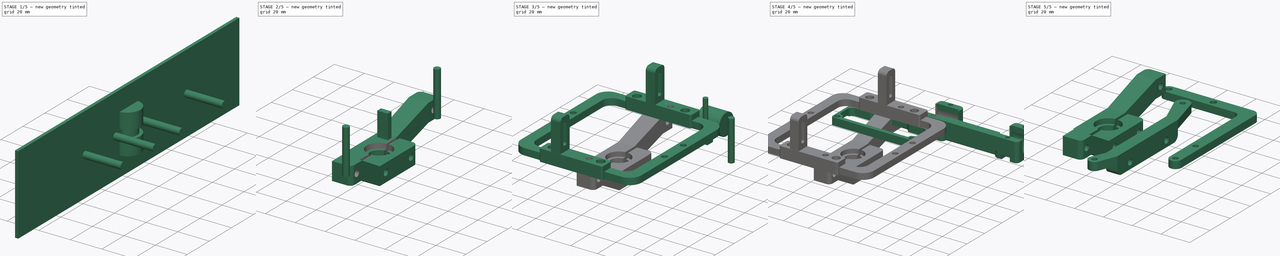
[diagram: build sequence overview — one tinted view per stage of 5, left to right]
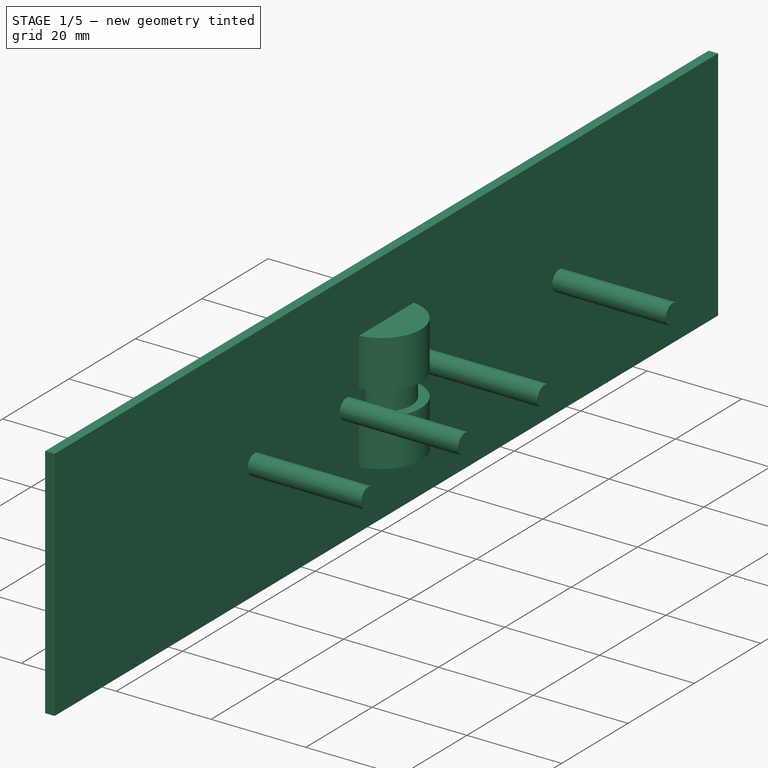
[diagram: stage 1 of 5 — iso view after this stage's code; geometry added in this stage tinted green]
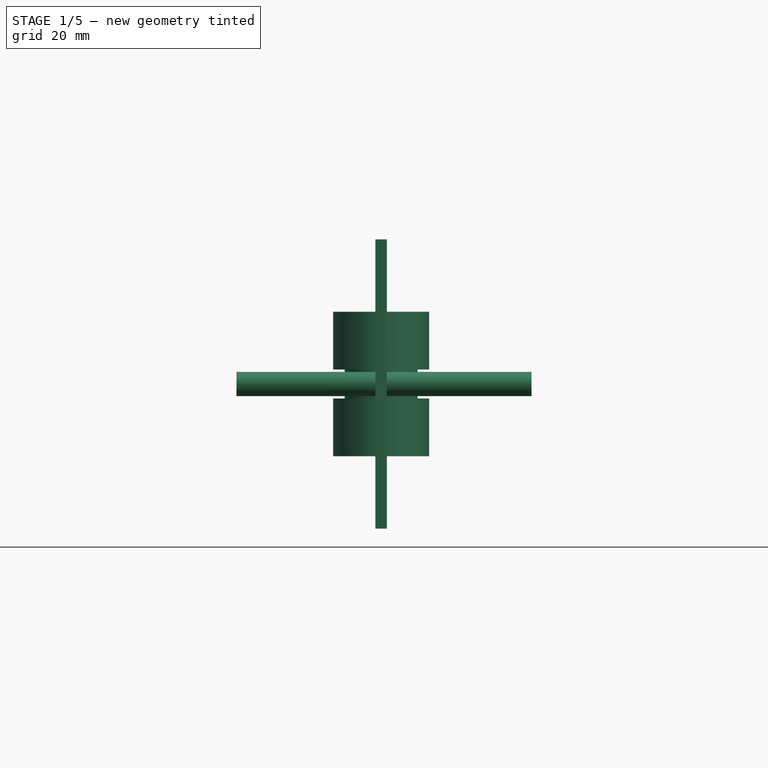
[diagram: stage 1 of 5 — front view after this stage's code; geometry added in this stage tinted green]
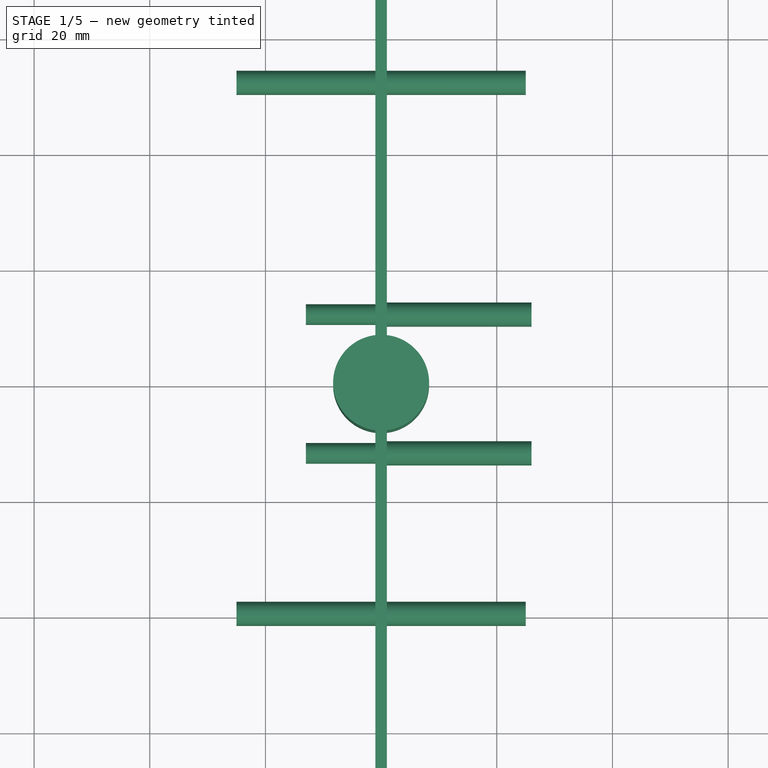
[diagram: stage 1 of 5 — top view after this stage's code; geometry added in this stage tinted green]
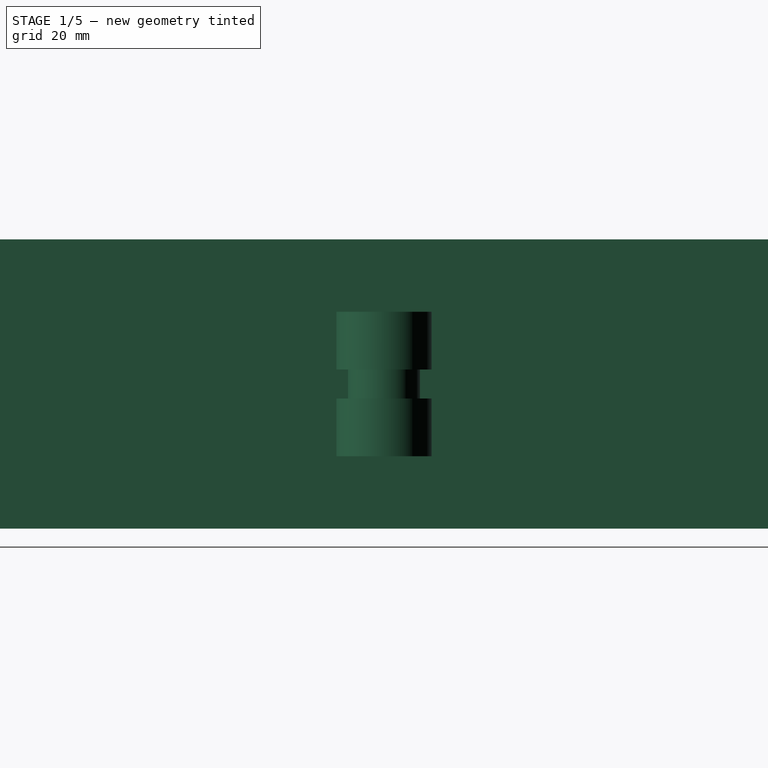
[diagram: stage 1 of 5 — right view after this stage's code; geometry added in this stage tinted green]
FCSTD DOCUMENT  (FreeCAD 0.21R33771 (Git))
Label: heasink_holder
License: All rights reserved
LicenseURL: http://en.wikipedia.org/wiki/All_rights_reserved
objects: Part::Compound×14, Part::Cylinder×11, Part::MultiFuse×11, Part::Box×9, Part::Feature×9, Part::Cut×7, Part::Fillet×6, Sketcher::SketchObject×6, Part::Extrusion×6, Part::Mirroring×5, Part::FeaturePython×5, Part::Loft×2, Part::Plane×1
note: 89 computed .brp shape members not serialized (recipe doc carries the construction recipe); baked Part::Feature solids carry a one-line shape summary decoded from their .brp

FEATURE [Part::Cylinder] Cylinder001  label="outer hole"
  Angle = 360
  AttacherType = Attacher::AttachEngine3D
  FirstAngle = 0
  Height = 10
  Placement = pos=(0,0,2.5) rot=(0,0,1;0rad)
  Radius = 8.3
  SecondAngle = 0
FEATURE [Part::Box] Box  label="outer cube"
  AttacherType = Attacher::AttachEngine3D
  Height = 12
  Length = 26
  Placement = pos=(-13,-18,-6) rot=(0,0,1;0rad)
  Width = 36
  expr: .Placement.Base.x = -Length / 2
  expr: .Placement.Base.y = -Width / 2
  expr: .Placement.Base.z = -Height / 2
FEATURE [Part::Mirroring] Part__Mirroring  label="outer hole (Mirror #1)"
  Base = (0,0,0)
  Normal = (0,0,1)
  Source = -> Cylinder001
FEATURE [Part::Cylinder] Cylinder  label="inner hole"
  Angle = 360
  AttacherType = Attacher::AttachEngine3D
  FirstAngle = 0
  Height = 12
  Placement = pos=(0,0,-6) rot=(0,0,1;0rad)
  Radius = 6.3
  SecondAngle = 0
  expr: .Placement.Base.z = -Height / 2
  expr: Height = <<outer cube>>.Height
FEATURE [Part::MultiFuse] Fusion  label="hole fusion"
  Shapes = -> [Part__Mirroring,Cylinder001,Cylinder]
  expr: .Placement.Base.z = <<outer fillet>>.Placement.Base.z
FEATURE [Part::Fillet] Fillet  label="outer fillet"
  Base = -> Box
  Edges = 2 edges r=3: [Edge1,Edge7]
FEATURE [Part::Box] Box001  label="cutter cube"
  AttacherType = Attacher::AttachEngine3D
  Height = 50
  Length = 2
  Placement = pos=(-1,-100,-25) rot=(0,0,1;0rad)
  Width = 200
  expr: .Placement.Base.x = -Length / 2
  expr: .Placement.Base.y = -Width / 2
  expr: .Placement.Base.z = -Height / 2
FEATURE [Part::Cylinder] Cylinder002  label="bolt hole"
  Angle = 360
  AttacherType = Attacher::AttachEngine3D
  FirstAngle = 0
  Height = 26
  Placement = pos=(-13,12,0) rot=(0,1,0;1.5708rad)
  Radius = 1.8
  SecondAngle = 0
  expr: .Placement.Base.x = -Height / 2
  expr: .Placement.Base.y = <<outer cube>>.Width / 2 - 6 mm
  expr: Height = <<outer cube>>.Length
FEATURE [Part::Cylinder] Cylinder003  label="inserter hole"
  Angle = 360
  AttacherType = Attacher::AttachEngine3D
  FirstAngle = 0
  Height = 26
  Placement = pos=(0,12,0) rot=(0,1,0;1.5708rad)
  Radius = 2.1
  SecondAngle = 0
  expr: .Placement.Base.y = <<outer cube>>.Width / 2 - 6 mm
  expr: Height = <<outer cube>>.Length
FEATURE [Part::MultiFuse] Fusion001  label="bolt-inserter hole"
  Shapes = -> [Cylinder002,Cylinder003]
FEATURE [Part::Mirroring] Part__Mirroring001  label="bolt-inserter hole (Mirror #2)"
  Base = (0,0,0)
  Normal = (0,1,0)
  Source = -> Fusion001
FEATURE [Part::Cylinder] Cylinder008  label="outer positive inserter hole"
  Angle = 360
  AttacherType = Attacher::AttachEngine3D
  FirstAngle = 0
  Height = 50
  Placement = pos=(-25,52.08,0) rot=(0,1,0;1.5708rad)
  Radius = 2.1
  SecondAngle = 0
  expr: .Placement.Base.x = -Height / 2
FEATURE [Part::Feature] E3d_v6_Heatsink004
  Placement = pos=(-8.4,-6.1,29.3) rot=(0,0,1;0rad)
  shape: bbox 22.3 x 22.3 x 42.7 mm, 17496 faces, 0 solids (baked)
FEATURE [Part::Feature] Compound021  label="old kit compound"
  shape: bbox 97.96 x 115.6 x 138.6 mm, 5476 faces, 7 solids (baked)
FEATURE [Part::Cylinder] Cylinder009  label="outer negative inserter hole"
  Angle = 360
  AttacherType = Attacher::AttachEngine3D
  FirstAngle = 0
  Height = 50
  Placement = pos=(-25,-39.75,0) rot=(0,1,0;1.5708rad)
  Radius = 2.1
  SecondAngle = 0
  expr: .Placement.Base.x = -Height / 2
FEATURE [Part::Feature] Face004
  shape: bbox 13 x 2e-07 x 12 mm, 1 faces, 0 solids (baked)
FEATURE [Part::Feature] Face005
  shape: bbox 13 x 2e-07 x 12 mm, 1 faces, 0 solids (baked)
FEATURE [Part::MultiFuse] Fusion011  label="hole hole fusion"
  Shapes = -> [Fusion001,Box001,Part__Mirroring001,Fusion]
FEATURE [Part::MultiFuse] Fusion013  label="hole fusion002"
  Shapes = -> [Cylinder008,Cylinder009]
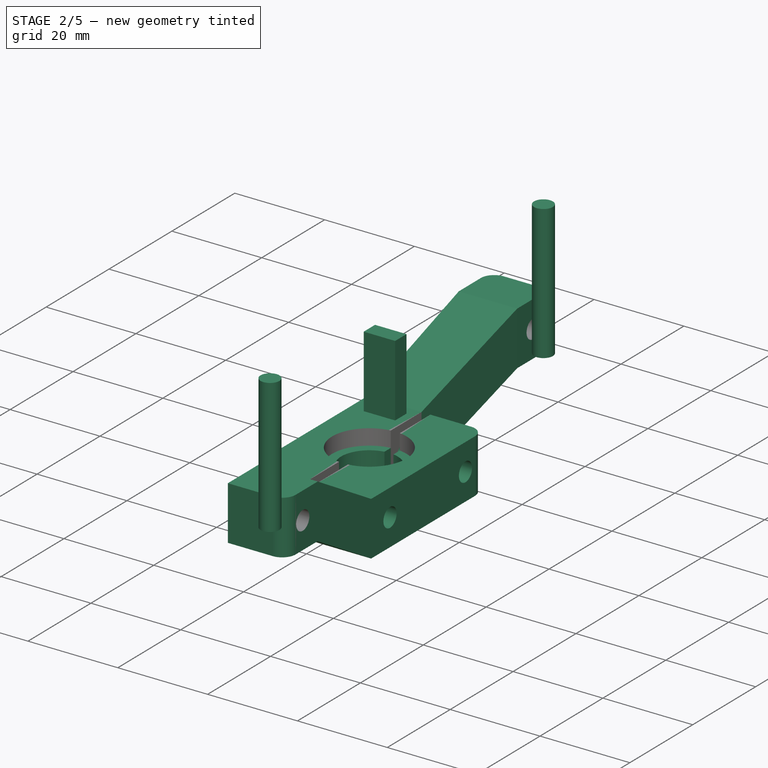
[diagram: stage 2 of 5 — iso view after this stage's code; geometry added in this stage tinted green]
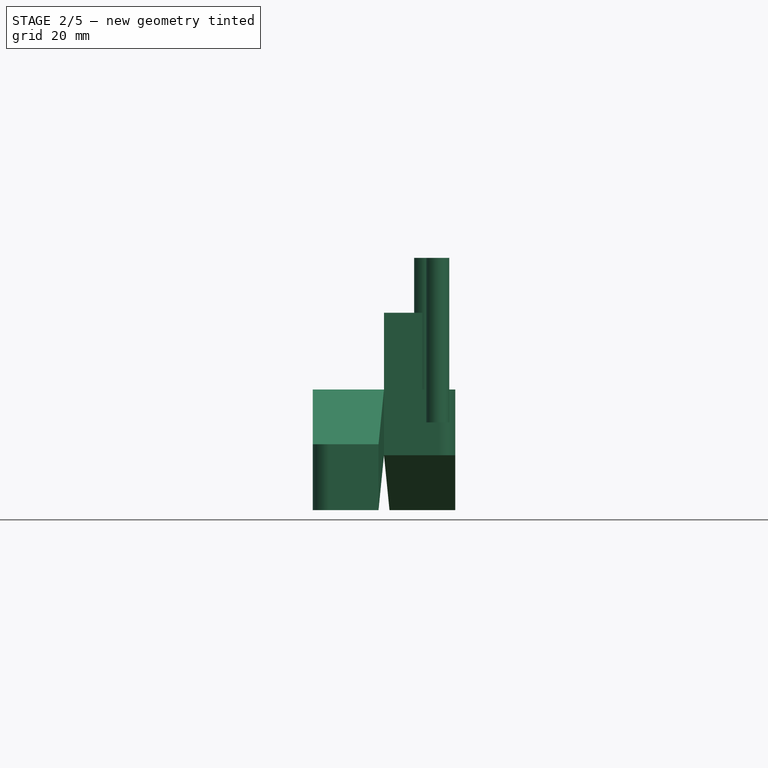
[diagram: stage 2 of 5 — front view after this stage's code; geometry added in this stage tinted green]
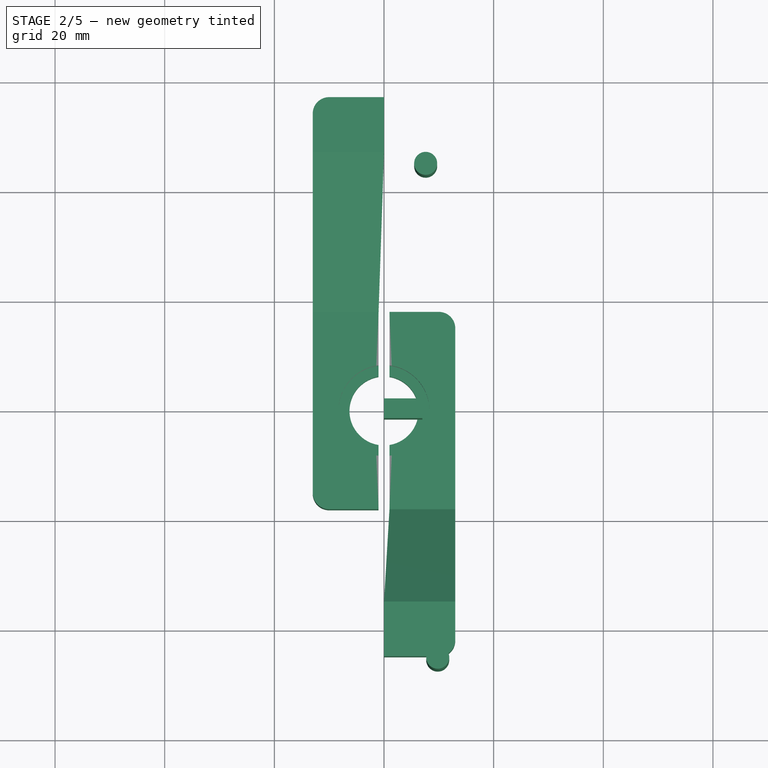
[diagram: stage 2 of 5 — top view after this stage's code; geometry added in this stage tinted green]
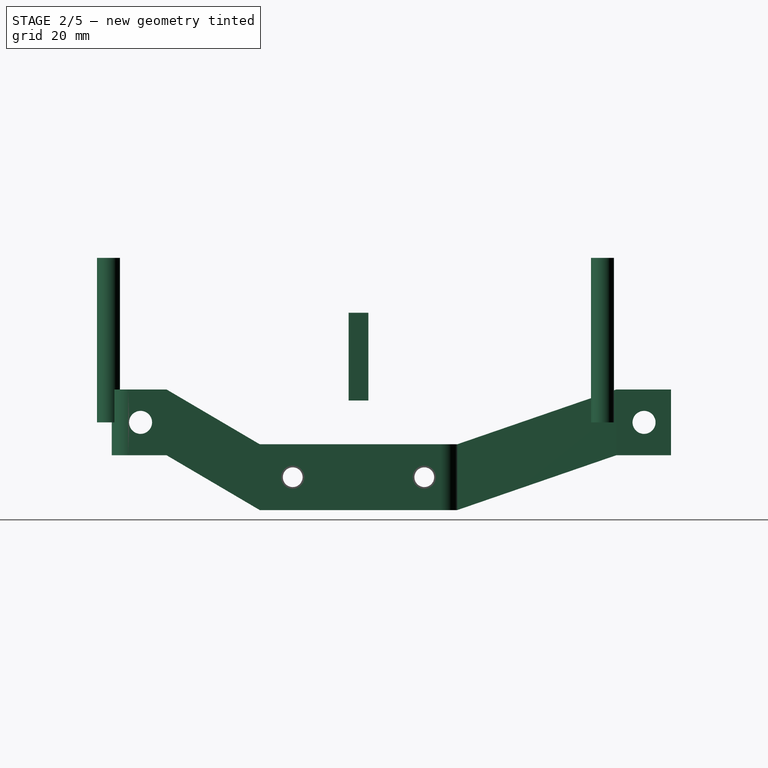
[diagram: stage 2 of 5 — right view after this stage's code; geometry added in this stage tinted green]
FEATURE [Part::Box] Box007  label="outer positive cube extender"
  AttacherType = Attacher::AttachEngine3D
  Height = 12
  Length = 13
  Placement = pos=(-13,47,-6) rot=(0,0,1;0rad)
  Width = 10
  expr: .Placement.Base.x = -Length
  expr: .Placement.Base.z = -Height / 2
  expr: Length = <<outer cube>>.Length / 2
FEATURE [Part::Fillet] Fillet003  label="outer positive cube extender fillet"
  Base = -> Box007
  Edges = 1 edges r=3: [Edge3]
FEATURE [Part::Box] Box008  label="outer negative cube extender"
  AttacherType = Attacher::AttachEngine3D
  Height = 12
  Length = 13
  Placement = pos=(0,-45,-6) rot=(0,0,1;0rad)
  Width = 10
  expr: .Placement.Base.z = -Height / 2
  expr: Length = <<outer cube>>.Length / 2
FEATURE [Part::Fillet] Fillet004  label="outer negative cube extender fillet"
  Base = -> Box008
  Edges = 1 edges r=3: [Edge5]
FEATURE [Part::Box] Box009  label="stand cube"
  AttacherType = Attacher::AttachEngine3D
  Height = 24
  Length = 7
  Placement = pos=(0,-5,0) rot=(0,0,1;0rad)
  Width = 10
  expr: .Placement.Base.y = -Width / 2
FEATURE [Part::Box] Box010  label="stand hole"
  AttacherType = Attacher::AttachEngine3D
  Height = 16
  Length = 7
  Placement = pos=(0,-1.8,4) rot=(0,0,1;0rad)
  Width = 3.6
  expr: .Placement.Base.y = -Width / 2
  expr: .Placement.Base.z = (<<stand cube>>.Height - Height) / 2
  expr: Height = <<stand cube>>.Height - 8 mm
  expr: Length = <<stand cube>>.Length
FEATURE [Part::Cylinder] Cylinder010  label="insert hole"
  Angle = 360
  AttacherType = Attacher::AttachEngine3D
  FirstAngle = 0
  Height = 30
  Placement = pos=(7.6,44.5,0) rot=(0,0,1;0rad)
  Radius = 2.1
  SecondAngle = 0
FEATURE [Part::Cylinder] Cylinder011  label="insert hole003"
  Angle = 360
  AttacherType = Attacher::AttachEngine3D
  FirstAngle = 0
  Height = 30
  Placement = pos=(9.8,-45.6,0) rot=(0,0,1;0rad)
  Radius = 2.1
  SecondAngle = 0
FEATURE [Part::MultiFuse] Fusion010  label="insert hole fusion"
  Shapes = -> [Cylinder011,Cylinder010]
FEATURE [Part::Cut] Cut008  label="outer cut"
  Base = -> Fillet
  Placement = pos=(0,0,-10) rot=(0,0,1;0rad)
  Tool = -> Fusion011
FEATURE [Part::Feature] Face006
  shape: bbox 12 x 3e-07 x 12 mm, 1 faces, 0 solids (baked)
FEATURE [Part::Loft] Loft
  Closed = false
  MaxDegree = 5
  Ruled = false
  Sections = -> [Face005,Face006]
  Solid = true
FEATURE [Part::Feature] Face007
  shape: bbox 12 x 2e-07 x 12 mm, 1 faces, 0 solids (baked)
FEATURE [Part::Loft] Loft001
  Closed = false
  MaxDegree = 5
  Ruled = false
  Sections = -> [Face004,Face007]
  Solid = true
FEATURE [Part::MultiFuse] Fusion012  label="heatsink holder fusion"
  Shapes = -> [Fillet003,Fillet004,Loft,Loft001,Cut008]
FEATURE [Part::Cut] Cut009  label="heatsink holder cut"
  Base = -> Fusion012
  Tool = -> Fusion013
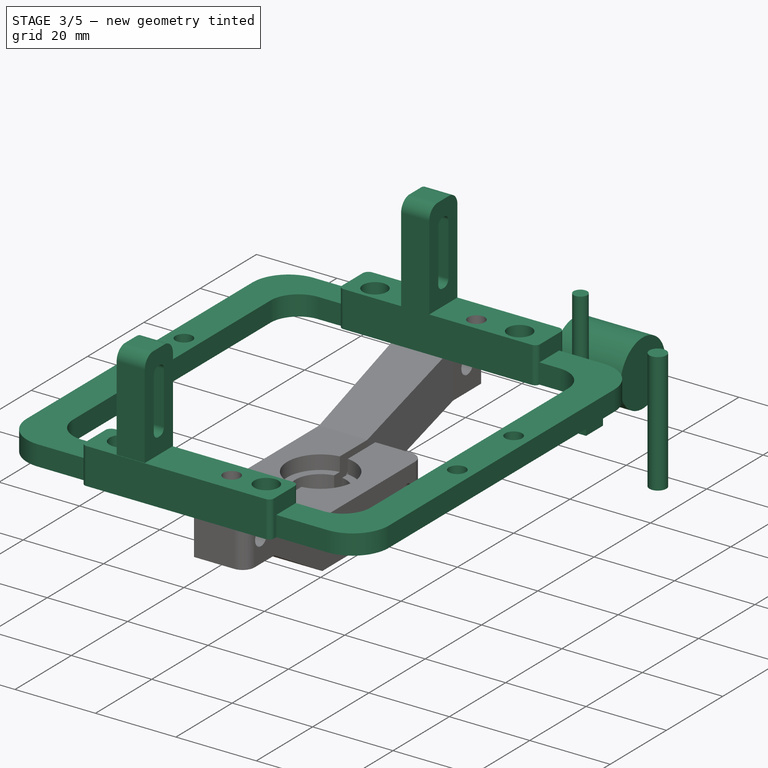
[diagram: stage 3 of 5 — iso view after this stage's code; geometry added in this stage tinted green]
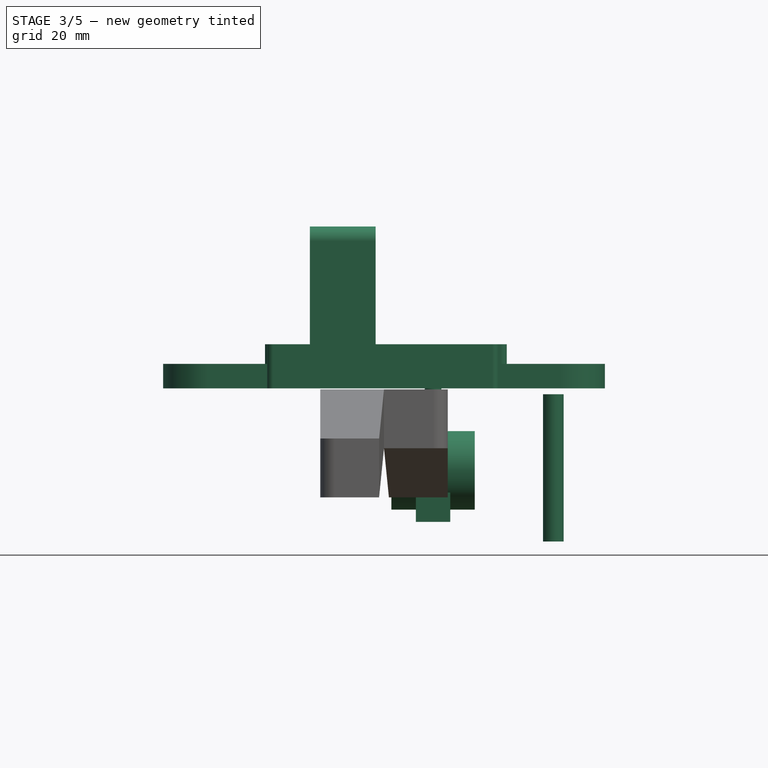
[diagram: stage 3 of 5 — front view after this stage's code; geometry added in this stage tinted green]
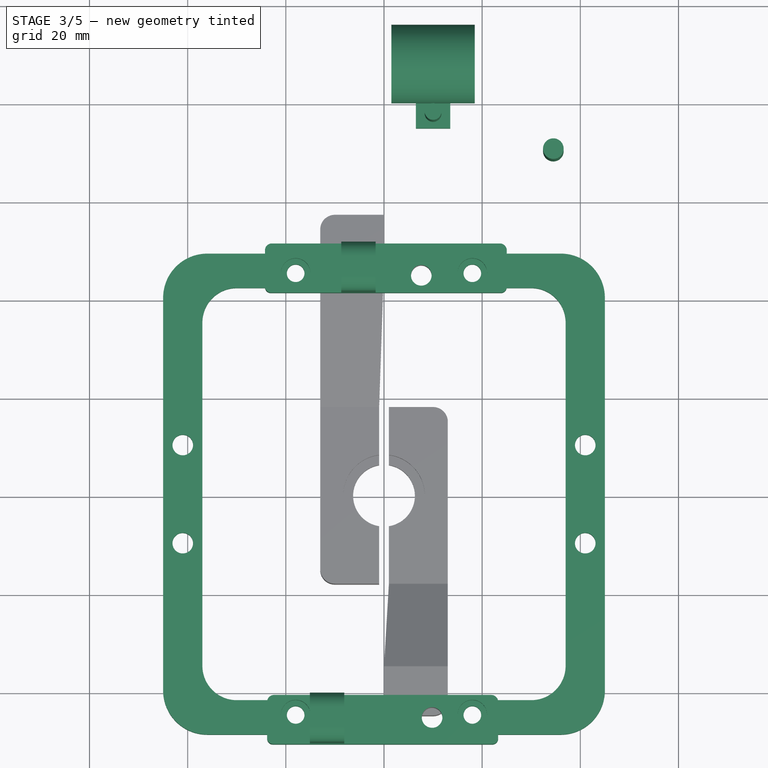
[diagram: stage 3 of 5 — top view after this stage's code; geometry added in this stage tinted green]
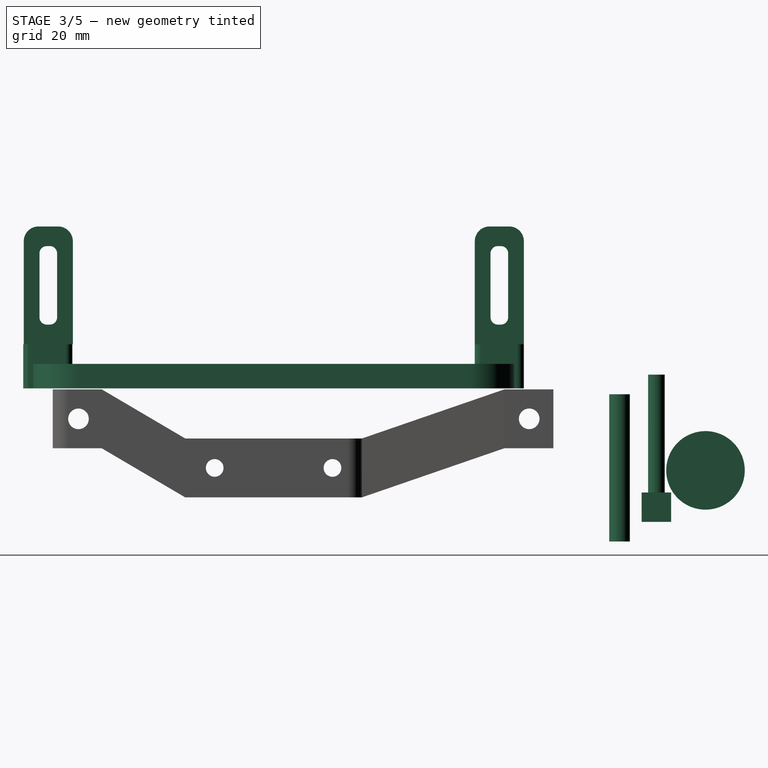
[diagram: stage 3 of 5 — right view after this stage's code; geometry added in this stage tinted green]
FEATURE [Part::Box] Box002  label="Cube"
  AttacherType = Attacher::AttachEngine3D
  Height = 6
  Length = 7
  Placement = pos=(-3.5,-3,0) rot=(0,0,1;0rad)
  Width = 6
  expr: .Placement.Base.x = -Length / 2
  expr: .Placement.Base.y = -Width / 2
FEATURE [Part::Box] Box005  label="cs cube"
  AttacherType = Attacher::AttachEngine3D
  Height = 9
  Length = 8
  Placement = pos=(10.2,-26,-2.4) rot=(0,0,1;0rad)
  Width = 55
FEATURE [Part::Cylinder] Cylinder004  label="bearing hole"
  Angle = 360
  AttacherType = Attacher::AttachEngine3D
  FirstAngle = 0
  Height = 17
  Placement = pos=(1.5,88,-10.5) rot=(0,1,0;1.5708rad)
  Radius = 8
  SecondAngle = 0
FEATURE [Part::Cylinder] Cylinder005  label="insert hole002"
  Angle = 360
  AttacherType = Attacher::AttachEngine3D
  FirstAngle = 0
  Height = 30
  Placement = pos=(34.5,70.5,-25) rot=(0,0,1;0rad)
  Radius = 2.1
  SecondAngle = 0
FEATURE [Part::Cylinder] Cylinder006  label="bolt hole001"
  Angle = 360
  AttacherType = Attacher::AttachEngine3D
  FirstAngle = 0
  Height = 30
  Radius = 1.7
  SecondAngle = 0
FEATURE [Part::MultiFuse] Fusion004  label="bolt hole fusion"
  Placement = pos=(10,78,-21) rot=(0,0,1;0rad)
  Shapes = -> [Box002,Cylinder006]
FEATURE [Sketcher::SketchObject] Sketch002  label="pair connector sketch"
  FullyConstrained = true
  sketch-geometry (32):
    g0: LineSegment StartX=-36 StartY=-49 StartZ=0 EndX=0 EndY=-49 EndZ=0
    g1: LineSegment StartX=0 StartY=-49 StartZ=0 EndX=36 EndY=-49 EndZ=0
    g2: LineSegment StartX=-30 StartY=-42 StartZ=0 EndX=0 EndY=-42 EndZ=0
    g3: LineSegment StartX=0 StartY=-42 StartZ=0 EndX=30 EndY=-42 EndZ=0
    g4: LineSegment StartX=-37 StartY=35 StartZ=0 EndX=-37 EndY=0 EndZ=0
    g5: LineSegment StartX=-37 StartY=0 StartZ=0 EndX=-37 EndY=-35 EndZ=0
    g6: LineSegment StartX=-45 StartY=40 StartZ=0 EndX=-45 EndY=0 EndZ=0
    g7: LineSegment StartX=-45 StartY=0 StartZ=0 EndX=-45 EndY=-40 EndZ=0
    g8: LineSegment StartX=37 StartY=-35 StartZ=0 EndX=37 EndY=0 EndZ=0
    g9: LineSegment StartX=37 StartY=0 StartZ=0 EndX=37 EndY=35 EndZ=0
    g10: LineSegment StartX=30 StartY=42 StartZ=0 EndX=0 EndY=42 EndZ=0
    g11: LineSegment StartX=0 StartY=42 StartZ=0 EndX=-30 EndY=42 EndZ=0
    g12: ArcOfCircle CenterX=-30 CenterY=-35 CenterZ=0 NormalX=0 NormalY=0 NormalZ=1 AngleXU=0 Radius=7 StartAngle=3.14159 EndAngle=4.71239
    g13: ArcOfCircle CenterX=-30 CenterY=35 CenterZ=0 NormalX=0 NormalY=0 NormalZ=1 AngleXU=0 Radius=7 StartAngle=1.5708 EndAngle=3.14159
    g14: ArcOfCircle CenterX=30 CenterY=35 CenterZ=0 NormalX=0 NormalY=0 NormalZ=1 AngleXU=0 Radius=7 StartAngle=1e-16 EndAngle=1.5708
    g15: ArcOfCircle CenterX=30 CenterY=-35 CenterZ=0 NormalX=0 NormalY=0 NormalZ=1 AngleXU=0 Radius=7 StartAngle=4.71239 EndAngle=6.28319
    g16: LineSegment StartX=36 StartY=49 StartZ=0 EndX=0 EndY=49 EndZ=0
    g17: LineSegment StartX=0 StartY=49 StartZ=0 EndX=-36 EndY=49 EndZ=0
    g18: LineSegment StartX=45 StartY=-40 StartZ=0 EndX=45 EndY=0 EndZ=0
    g19: LineSegment StartX=45 StartY=0 StartZ=0 EndX=45 EndY=40 EndZ=0
    g20: ArcOfCircle CenterX=-36 CenterY=-40 CenterZ=0 NormalX=0 NormalY=0 NormalZ=1 AngleXU=0 Radius=9 StartAngle=3.14159 EndAngle=4.71239
    g21: ArcOfCircle CenterX=-36 CenterY=40 CenterZ=0 NormalX=0 NormalY=0 NormalZ=1 AngleXU=0 Radius=9 StartAngle=1.5708 EndAngle=3.14159
    g22: ArcOfCircle CenterX=36 CenterY=40 CenterZ=0 NormalX=0 NormalY=0 NormalZ=1 AngleXU=0 Radius=9 StartAngle=2e-16 EndAngle=1.5708
    g23: ArcOfCircle CenterX=36 CenterY=-40 CenterZ=0 NormalX=0 NormalY=0 NormalZ=1 AngleXU=0 Radius=9 StartAngle=4.71239 EndAngle=6.28319
    g24: Circle CenterX=-18 CenterY=45 CenterZ=0 NormalX=0 NormalY=0 NormalZ=1 AngleXU=0 Radius=1.8
    g25: Circle CenterX=18 CenterY=45 CenterZ=0 NormalX=0 NormalY=0 NormalZ=1 AngleXU=0 Radius=1.8
    g26: Circle CenterX=-18 CenterY=-45 CenterZ=0 NormalX=0 NormalY=0 NormalZ=1 AngleXU=0 Radius=1.8
    g27: Circle CenterX=18 CenterY=-45 CenterZ=0 NormalX=0 NormalY=0 NormalZ=1 AngleXU=0 Radius=1.8
    g28: Circle CenterX=-41 CenterY=10 CenterZ=0 NormalX=0 NormalY=0 NormalZ=1 AngleXU=0 Radius=2.1
    g29: Circle CenterX=-41 CenterY=-10 CenterZ=0 NormalX=0 NormalY=0 NormalZ=1 AngleXU=0 Radius=2.1
    g30: Circle CenterX=41 CenterY=-10 CenterZ=0 NormalX=0 NormalY=0 NormalZ=1 AngleXU=0 Radius=2.1
    g31: Circle CenterX=41 CenterY=10 CenterZ=0 NormalX=0 NormalY=0 NormalZ=1 AngleXU=0 Radius=2.1
  constraints (78):
    c: Coincident(g0,g1)
    c: Horizontal(g0)
    c: Horizontal(g1)
    c: Coincident(g2,g3)
    c: Coincident(g4,g5)
    c: Coincident(g6,g7)
    c: Coincident(g8,g9)
    c: Vertical(g8)
    c: Vertical(g9)
    c: Coincident(g10,g11)
    c: Horizontal(g10)
    c: Horizontal(g11)
    c: PointOnObject(g10,g-2)
    c: Symmetric(g2,g10,g-1)
    c: Symmetric(g4,g8,g-2)
    c: PointOnObject(g4,g-1)
    c: Vertical(g5)
    c: Vertical(g4)
    c: Horizontal(g3)
    c: Horizontal(g2)
    c: Tangent(g2,g12) = -1.5708
    c: Tangent(g5,g12) = -1.5708
    c: Tangent(g4,g13) = -1.5708
    c: Tangent(g11,g13) = -1.5708
    c: Tangent(g10,g14) = -1.5708
    c: Tangent(g9,g14) = -1.5708
    c: Tangent(g8,g15) = -1.5708
    c: Tangent(g3,g15) = -1.5708
    c: Equal(g15,g12)
    c: Equal(g12,g13)
    c: Equal(g13,g14)
    c: Coincident(g16,g17)
    c: Coincident(g18,g19)
    c: Vertical(g18)
    c: Vertical(g19)
    c: PointOnObject(g18,g-1)
    c: Symmetric(g6,g18,g-2)
    c: PointOnObject(g0,g-2)
    c: Symmetric(g16,g0,g-1)
    c: Horizontal(g17)
    c: Horizontal(g16)
    c: Vertical(g7)
    c: Vertical(g6)
    c: DistanceY(g10,g16) = 7
    c: Tangent(g7,g20) = -1.5708
    c: Tangent(g0,g20) = -1.5708
    c: Tangent(g6,g21) = -1.5708
    c: Tangent(g17,g21) = -1.5708
    c: Tangent(g16,g22) = -1.5708
    c: Tangent(g19,g22) = -1.5708
    c: Tangent(g18,g23) = -1.5708
    c: Tangent(g1,g23) = -1.5708
    c: Equal(g20,g23)
    c: Equal(g23,g22)
    c: Equal(g22,g21)
    c: DistanceY(g4,g4) = 35
    c: DistanceY(g6,g6) = 40
    c: Symmetric(g26,g27,g-2)
    c: Symmetric(g26,g24,g-1)
    c: Symmetric(g24,g25,g-2)
    c: Radius(g26) = 1.8
    c: DistanceX(g26,g27) = 36
    c: DistanceY(g26,g24) = 90
    c: Equal(g24,g25)
    c: Equal(g25,g27)
    c: Equal(g27,g26)
    c: DistanceX(g6,g4) = 8
    c: DistanceY(g-1,g10) = 42
    c: Equal(g28,g29)
    c: Symmetric(g29,g28,g-1)
    c: DistanceX(g29,g-1) = 41
    c: Radius(g28) = 2.1
    c: DistanceY(g29,g28) = 20
    c: DistanceX(g4,g-1) = 37
    c: Equal(g31,g30)
    c: Radius(g31) = 2.1
    c: Symmetric(g31,g30,g-1)
    c: Symmetric(g30,g29,g-2)
FEATURE [Part::Extrusion] Extrude001  label="pair connector extrude"
  Base = -> Sketch002
  Dir = (0,0,1)
  DirMode = 2
  FaceMakerClass = Part::FaceMakerBullseye
  LengthFwd = 5
  LengthRev = 0
  Placement = pos=(0,0,6.2) rot=(0,0,1;0rad)
  Solid = true
  Symmetric = false
FEATURE [Sketcher::SketchObject] Sketch006  label="mho bottom attach sketch"
  ExternalGeometry = -> [Extrude001]
  FullyConstrained = false
  sketch-geometry (24):
    g0: Circle CenterX=18 CenterY=45 CenterZ=0 NormalX=0 NormalY=0 NormalZ=1 AngleXU=0 Radius=3
    g1: Circle CenterX=-18 CenterY=45 CenterZ=0 NormalX=0 NormalY=0 NormalZ=1 AngleXU=0 Radius=3
    g2: LineSegment StartX=-22.8418 StartY=51 StartZ=0 EndX=23.601 EndY=51 EndZ=0
    g3: LineSegment StartX=25.0152 StartY=49.5858 StartZ=0 EndX=25.0152 EndY=42.2142 EndZ=0
    g4: LineSegment StartX=23.801 StartY=41 StartZ=0 EndX=-23.0418 EndY=41 EndZ=0
    g5: LineSegment StartX=-24.256 StartY=42.2142 StartZ=0 EndX=-24.256 EndY=49.5858 EndZ=0
    g6: LineSegment StartX=-22.3999 StartY=-41 StartZ=0 EndX=21.8493 EndY=-41 EndZ=0
    g7: LineSegment StartX=23.2635 StartY=-42.4142 StartZ=0 EndX=23.2635 EndY=-49.7858 EndZ=0
    g8: LineSegment StartX=22.0493 StartY=-51 StartZ=0 EndX=-22.5999 EndY=-51 EndZ=0
    g9: LineSegment StartX=-23.8141 StartY=-49.7858 StartZ=0 EndX=-23.8141 EndY=-42.4142 EndZ=0
    g10: Circle CenterX=-18 CenterY=-45 CenterZ=0 NormalX=0 NormalY=0 NormalZ=1 AngleXU=0 Radius=3
    g11: Circle CenterX=18 CenterY=-45 CenterZ=0 NormalX=0 NormalY=0 NormalZ=1 AngleXU=0 Radius=3
    g12: GeomPoint X=0 Y=-41 Z=0
    g13: GeomPoint X=0 Y=-51 Z=0
    g14: GeomPoint X=0 Y=51 Z=0
    g15: GeomPoint X=0 Y=41 Z=0
    g16: ArcOfCircle CenterX=-22.8418 CenterY=49.5858 CenterZ=0 NormalX=0 NormalY=0 NormalZ=1 AngleXU=0 Radius=1.41421 StartAngle=1.5708 EndAngle=3.14159
    g17: ArcOfCircle CenterX=23.601 CenterY=49.5858 CenterZ=0 NormalX=0 NormalY=0 NormalZ=1 AngleXU=0 Radius=1.41421 StartAngle=0 EndAngle=1.5708
    g18: ArcOfCircle CenterX=23.801 CenterY=42.2142 CenterZ=0 NormalX=0 NormalY=0 NormalZ=1 AngleXU=0 Radius=1.21421 StartAngle=4.71239 EndAngle=6.28319
    g19: ArcOfCircle CenterX=-23.0418 CenterY=42.2142 CenterZ=0 NormalX=0 NormalY=0 NormalZ=1 AngleXU=0 Radius=1.21421 StartAngle=3.14159 EndAngle=4.71239
    g20: ArcOfCircle CenterX=-22.3999 CenterY=-42.4142 CenterZ=0 NormalX=0 NormalY=0 NormalZ=1 AngleXU=0 Radius=1.41421 StartAngle=1.5708 EndAngle=3.14159
    g21: ArcOfCircle CenterX=-22.5999 CenterY=-49.7858 CenterZ=0 NormalX=0 NormalY=0 NormalZ=1 AngleXU=0 Radius=1.21421 StartAngle=3.14159 EndAngle=4.71239
    g22: ArcOfCircle CenterX=21.8493 CenterY=-42.4142 CenterZ=0 NormalX=0 NormalY=0 NormalZ=1 AngleXU=0 Radius=1.41421 StartAngle=0 EndAngle=1.5708
    g23: ArcOfCircle CenterX=22.0493 CenterY=-49.7858 CenterZ=0 NormalX=0 NormalY=0 NormalZ=1 AngleXU=0 Radius=1.21421 StartAngle=4.71239 EndAngle=6.28319
  constraints (38):
    c: Radius(g0) = 3
    c: Equal(g1,g0)
    c: Horizontal(g2)
    c: Horizontal(g4)
    c: Vertical(g3)
    c: Vertical(g5)
    c: Horizontal(g6)
    c: Horizontal(g8)
    c: Vertical(g7)
    c: Vertical(g9)
    c: Equal(g11,g10)
    c: Equal(g10,g1)
    c: PointOnObject(g12,g6)
    c: PointOnObject(g13,g8)
    c: PointOnObject(g14,g2)
    c: PointOnObject(g15,g4)
    c: PointOnObject(g15,g-2)
    c: PointOnObject(g14,g-2)
    c: Symmetric(g14,g13,g-1)
    c: Symmetric(g12,g15,g-1)
    c: DistanceY(g-1,g15) = 41
    c: DistanceY(g15,g14) = 10
    c: Tangent(g2,g16) = 1.5708
    c: Tangent(g5,g16) = 1.5708
    c: Tangent(g2,g17) = 1.5708
    c: Tangent(g3,g17) = 1.5708
    c: Tangent(g3,g18) = 1.5708
    c: Tangent(g4,g18) = 1.5708
    c: Tangent(g4,g19) = 1.5708
    c: Tangent(g5,g19) = 1.5708
    c: Tangent(g6,g20) = 1.5708
    c: Tangent(g9,g20) = 1.5708
    c: Tangent(g8,g21) = 1.5708
    c: Tangent(g9,g21) = 1.5708
    c: Tangent(g6,g22) = 1.5708
    c: Tangent(g7,g22) = 1.5708
    c: Tangent(g7,g23) = 1.5708
    c: Tangent(g8,g23) = 1.5708
FEATURE [Part::Extrusion] Extrude005  label="mho bottom attach extrude"
  Base = -> Sketch006
  Dir = (0,0,1)
  DirMode = 2
  FaceMakerClass = Part::FaceMakerBullseye
  LengthFwd = 9
  LengthRev = 0
  Placement = pos=(0,0,6.2) rot=(0,0,1;0rad)
  Solid = true
  Symmetric = false
  expr: .Placement.Base.z = <<pair connector extrude>>.Placement.Base.z
  expr: LengthFwd = <<cs cube>>.Height
FEATURE [Part::Fillet] Fillet005  label="stand cube fillet"
  Base = -> Box009
  Edges = 2 edges r=3: [Edge10,Edge12]
FEATURE [Part::Fillet] Fillet006  label="stand hole fillet"
  Base = -> Box010
  Edges = 4 edges r=1.5: [Edge9,Edge10,Edge11,Edge12]
FEATURE [Part::Cut] Cut005  label="stand hole cut"
  Base = -> Fillet005
  Tool = -> Fillet006
FEATURE [Part::Compound] Compound022  label="negative stand compound"
  Links = -> [Cut005]
  Placement = pos=(-15.1,-45.9,15.2) rot=(0,0,1;0rad)
FEATURE [Part::Compound] Compound023  label="positive stand compound"
  Links = -> [Cut005]
  Placement = pos=(-8.7,46,15.2) rot=(0,0,1;0rad)
FEATURE [Part::MultiFuse] Fusion008  label="pair connector fusion"
  Shapes = -> [Extrude005,Extrude001,Compound022,Compound023]
FEATURE [Part::Cut] Cut007  label="pair connector fusion cut"
  Base = -> Fusion008
  Tool = -> Fusion010
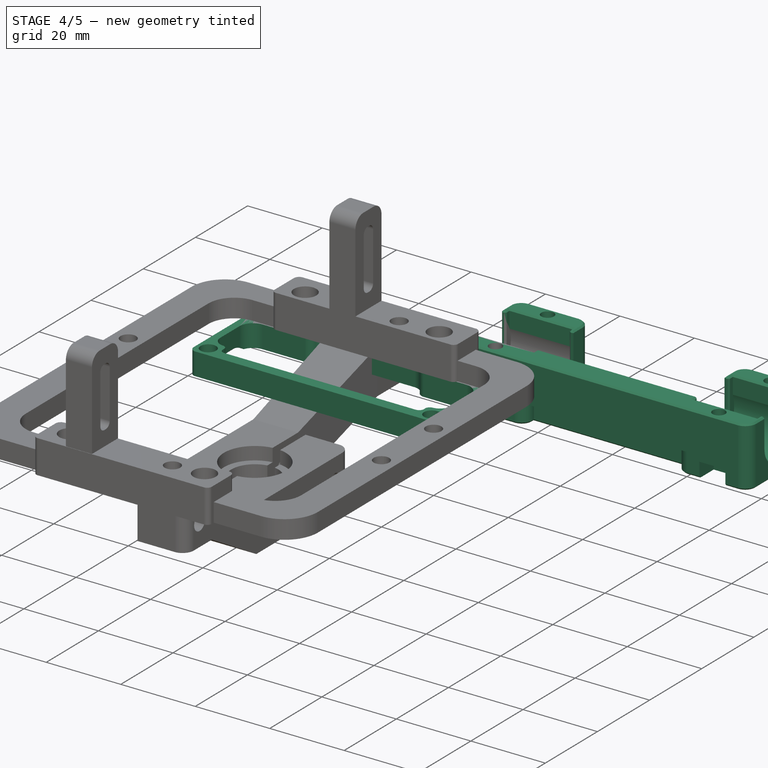
[diagram: stage 4 of 5 — iso view after this stage's code; geometry added in this stage tinted green]
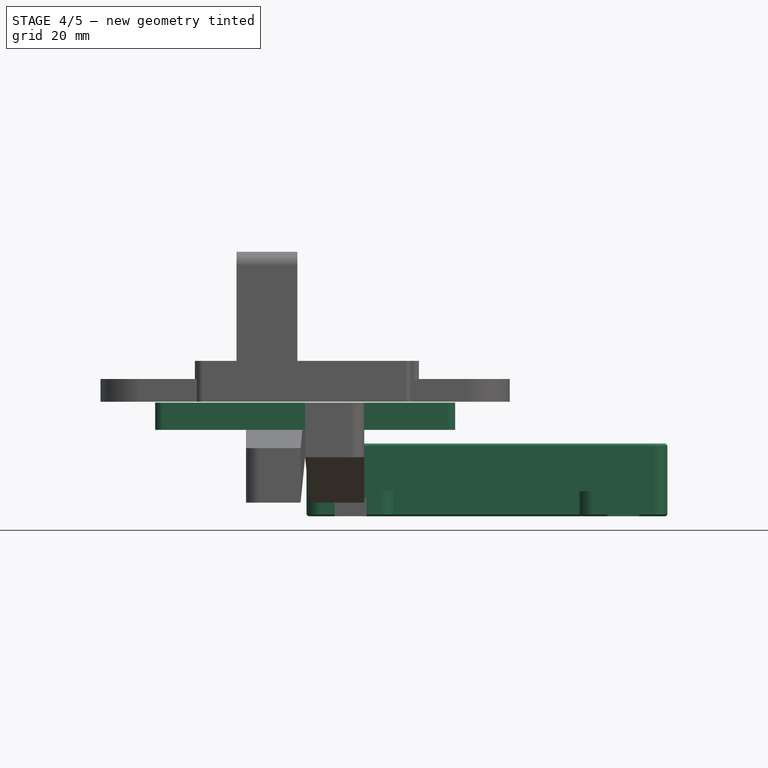
[diagram: stage 4 of 5 — front view after this stage's code; geometry added in this stage tinted green]
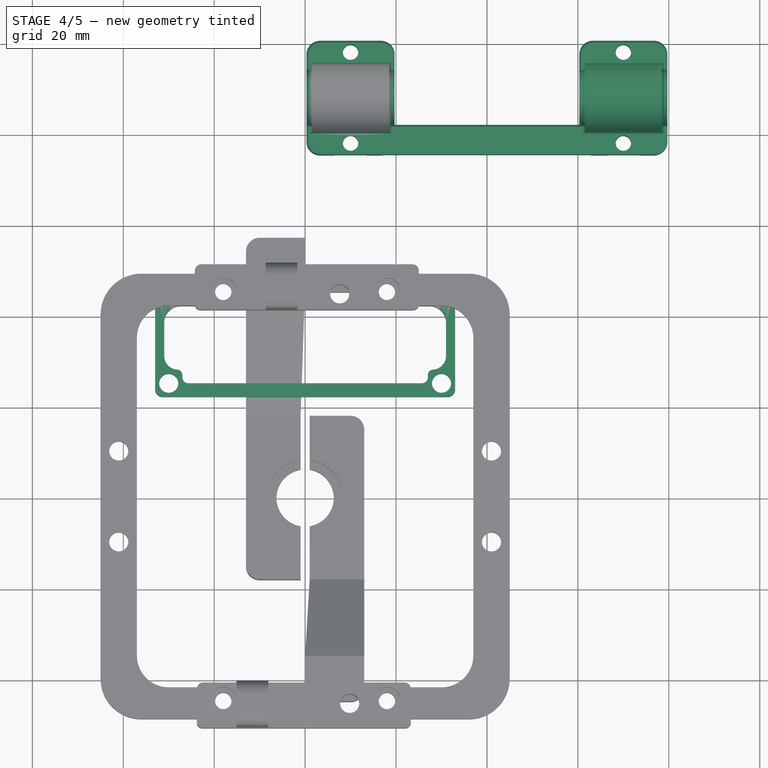
[diagram: stage 4 of 5 — top view after this stage's code; geometry added in this stage tinted green]
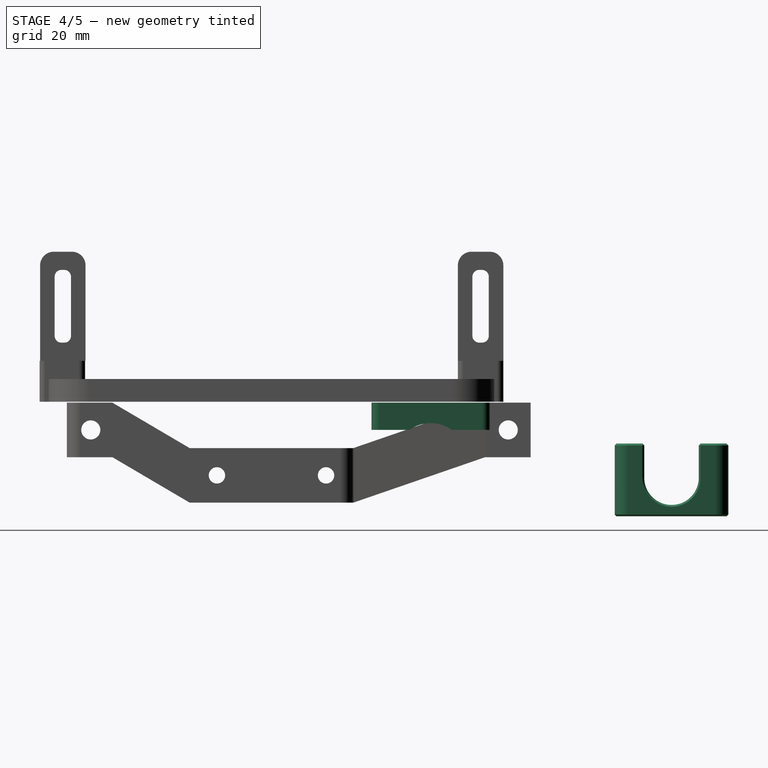
[diagram: stage 4 of 5 — right view after this stage's code; geometry added in this stage tinted green]
FEATURE [Part::FeaturePython] Array002  label="bearing hole array"  # Draft array (typed FeaturePython)
  AlwaysSyncPlacement = false
  Angle = 360
  ArrayType = 0
  Axis = (0,0,1)
  Base = -> Cylinder004
  Center = (0,0,0)
  Count = 2
  ExpandArray = false
  Fuse = false
  IntervalAxis = (0,0,0)
  IntervalX = (60,0,0)
  IntervalY = (0,100,0)
  IntervalZ = (0,0,100)
  NumberCircles = 3
  NumberPolar = 5
  NumberX = 2
  NumberY = 1
  NumberZ = 1
  PlacementList = 2 placements: [(1.5,88,-10.5),(61.5,88,-10.5)]
  RadialDistance = 50
  ScaleList = (2) [(1,1,1),(1,1,1)]
  Symmetry = 1
  TangentialDistance = 25
FEATURE [Part::Compound] Compound  label="bearing hole compound"
  Links = -> [Array002]
  Placement = pos=(-40,-88,4) rot=(0,0,1;0rad)
FEATURE [Part::FeaturePython] Array  label="insert hole array"  # Draft array (typed FeaturePython)
  AlwaysSyncPlacement = false
  Angle = 360
  ArrayType = 0
  Axis = (0,0,1)
  Base = -> Cylinder005
  Center = (0,0,0)
  Count = 2
  ExpandArray = false
  Fuse = false
  IntervalAxis = (0,0,0)
  IntervalX = (11,0,0)
  IntervalY = (0,100,0)
  IntervalZ = (0,0,100)
  NumberCircles = 3
  NumberPolar = 5
  NumberX = 2
  NumberY = 1
  NumberZ = 1
  PlacementList = 2 placements: [(34.5,70.5,-25),(45.5,70.5,-25)]
  RadialDistance = 50
  ScaleList = (2) [(1,1,1),(1,1,1)]
  Symmetry = 1
  TangentialDistance = 25
FEATURE [Part::FeaturePython] Array001  label="bolt hole array"  # Draft array (typed FeaturePython)
  AlwaysSyncPlacement = false
  Angle = 360
  ArrayType = 0
  Axis = (0,0,1)
  Base = -> Fusion004
  Center = (0,0,0)
  Count = 4
  ExpandArray = false
  Fuse = false
  IntervalAxis = (0,0,0)
  IntervalX = (60,0,0)
  IntervalY = (0,20,0)
  IntervalZ = (0,0,100)
  NumberCircles = 3
  NumberPolar = 5
  NumberX = 2
  NumberY = 2
  NumberZ = 1
  PlacementList = 4 placements: [(10,78,-21),(10,98,-21),(70,78,-21),(70,98,-21)]
  RadialDistance = 50
  ScaleList = (4) [(1,1,1),(1,1,1),(1,1,1),(1,1,1)]
  Symmetry = 1
  TangentialDistance = 25
FEATURE [Part::MultiFuse] Fusion003  label="extract fusion"
  Shapes = -> [Array002,Array001,Array]
FEATURE [Part::Plane] Plane
  AttacherType = Attacher::AttachEngine3D
  Length = 100
  Placement = pos=(0,75.5,-40.1) rot=(1,0,0;1.5708rad)
  Width = 100
FEATURE [Part::Feature] Shell_solid  label="Shell (Solid)"
  shape: bbox 86.46 x 37.82 x 16 mm, 163 faces (baked)
FEATURE [Part::Cut] Cut002  label="big thingy cut"
  Base = -> Shell_solid
  Tool = -> Fusion003
FEATURE [Sketcher::SketchObject] Sketch001  label="bearing connector sketch"
  FullyConstrained = false
  sketch-geometry (21):
    g0: Circle CenterX=30 CenterY=-10 CenterZ=0 NormalX=0 NormalY=0 NormalZ=1 AngleXU=0 Radius=2.1
    g1: Circle CenterX=30 CenterY=10 CenterZ=0 NormalX=0 NormalY=0 NormalZ=1 AngleXU=0 Radius=2.1
    g2: LineSegment StartX=33 StartY=11.3267 StartZ=0 EndX=33 EndY=-11.3267 EndZ=0
    g3: ArcOfCircle CenterX=31.3267 CenterY=11.3267 CenterZ=0 NormalX=0 NormalY=0 NormalZ=1 AngleXU=0 Radius=1.67327 StartAngle=-9e-16 EndAngle=1.5708
    g4: ArcOfCircle CenterX=31.3267 CenterY=-11.3267 CenterZ=0 NormalX=0 NormalY=0 NormalZ=1 AngleXU=0 Radius=1.67327 StartAngle=4.71239 EndAngle=6.28319
    g5: ArcOfCircle CenterX=25.72 CenterY=8.72003 CenterZ=0 NormalX=0 NormalY=0 NormalZ=1 AngleXU=0 Radius=1.27997 StartAngle=4e-16 EndAngle=1.5708
    g6: LineSegment StartX=27 StartY=8.21682 StartZ=0 EndX=27 EndY=8.72003 EndZ=0
    g7: LineSegment StartX=31 StartY=3.9721 StartZ=0 EndX=31 EndY=-3.3271 EndZ=0
    g8: ArcOfCircle CenterX=27.3271 CenterY=-3.3271 CenterZ=0 NormalX=0 NormalY=0 NormalZ=1 AngleXU=0 Radius=3.67291 StartAngle=4.71481 EndAngle=6.28319
    g9: ArcOfCircle CenterX=27.9668 CenterY=3.9721 CenterZ=0 NormalX=0 NormalY=0 NormalZ=1 AngleXU=0 Radius=3.03324 StartAngle=0 EndAngle=1.51145
    g10: ArcOfCircle CenterX=28.219 CenterY=8.21682 CenterZ=0 NormalX=0 NormalY=0 NormalZ=1 AngleXU=0 Radius=1.21897 StartAngle=3.14159 EndAngle=4.65304
    g11: Circle CenterX=18 CenterY=-10 CenterZ=0 NormalX=0 NormalY=0 NormalZ=1 AngleXU=0 Radius=2.1
    g12: LineSegment StartX=0 StartY=13 StartZ=0 EndX=31.3267 EndY=13 EndZ=0
    g13: LineSegment StartX=0 StartY=-13 StartZ=0 EndX=31.3267 EndY=-13 EndZ=0
    g14: LineSegment StartX=0 StartY=10 StartZ=0 EndX=25.72 EndY=10 EndZ=0
    g15: LineSegment StartX=0 StartY=13 StartZ=0 EndX=0 EndY=10 EndZ=0
    g16: LineSegment StartX=15.9933 StartY=-7 StartZ=0 EndX=27.336 EndY=-7 EndZ=0
    g17: LineSegment StartX=0 StartY=-10 StartZ=0 EndX=11.3576 EndY=-10 EndZ=0
    g18: LineSegment StartX=0 StartY=-10 StartZ=0 EndX=0 EndY=-13 EndZ=0
    g19: ArcOfCircle CenterX=11.3576 CenterY=-7.10336 CenterZ=0 NormalX=0 NormalY=0 NormalZ=1 AngleXU=0 Radius=2.89664 StartAngle=4.71239 EndAngle=5.86112
    g20: ArcOfCircle CenterX=15.9933 CenterY=-9.18507 CenterZ=0 NormalX=0 NormalY=0 NormalZ=1 AngleXU=0 Radius=2.18507 StartAngle=1.5708 EndAngle=2.71952
  constraints (49):
    c: Symmetric(g1,g0,g-1)
    c: Equal(g0,g1)
    c: Vertical(g2)
    c: Tangent(g2,g3) = 1.5708
    c: Tangent(g2,g4) = 1.5708
    c: Equal(g3,g4)
    c: DistanceY(g14,g12) = 3
    c: DistanceY(g13,g16) = 6
    c: Vertical(g6)
    c: Tangent(g6,g5) = -1.5708
    c: Vertical(g7)
    c: Tangent(g7,g8) = 1.5708
    c: Tangent(g7,g9) = 1.5708
    c: Tangent(g6,g10) = 1.5708
    c: DistanceX(g7,g2) = 2
    c: DistanceX(g-1,g1) = 30
    c: Horizontal(g13)
    c: Horizontal(g14)
    c: Radius(g0) = 2.1
    c: Coincident(g15,g12)
    c: PointOnObject(g15,g-2)
    c: Vertical(g15)
    c: Coincident(g14,g15)
    c: DistanceY(g0,g1) = 20
    c: DistanceY(g11,g0) = 0
    c: Equal(g11,g0)
    c: DistanceY(g13,g11) = 3
    c: DistanceX(g0,g2) = 3
    c: DistanceY(g1,g3) = 3
    c: Tangent(g13,g4) = -1.5708
    c: Tangent(g12,g3) = 1.5708
    c: Horizontal(g12)
    c: Tangent(g14,g5) = 1.5708
    c: DistanceX(g5,g2) = 6
    c: Tangent(g10,g9) = 1.5708
    c: DistanceY(g9,g1) = 3
    c: Coincident(g8,g16) = -1.5708
    c: Horizontal(g16)
    c: PointOnObject(g17,g-2)
    c: Horizontal(g17)
    c: Coincident(g18,g17)
    c: Coincident(g18,g13)
    c: Vertical(g18)
    c: DistanceY(g18,g18) = 3
    c: Tangent(g19,g17) = -1.5708
    c: Tangent(g20,g16) = 1.5708
    c: Tangent(g20,g19) = 1.5708
    c: DistanceX(g13,g11) = 18
    c: DistanceX(g19,g11) = 4
FEATURE [Part::Extrusion] Extrude  label="bearing connector extruder"
  Base = -> Sketch001
  Dir = (0,0,1)
  DirMode = 2
  FaceMakerClass = Part::FaceMakerBullseye
  LengthFwd = 6
  LengthRev = 0
  Solid = true
  Symmetric = false
FEATURE [Part::Mirroring] Part__Mirroring002  label="bearing connector extruder (Mirror #1)"
  Base = (0,0,0)
  Normal = (1,0,0)
  Source = -> Extrude
FEATURE [Part::MultiFuse] Fusion005  label="bearing connector fusion"
  Shapes = -> [Part__Mirroring002,Extrude]
FEATURE [Part::Cut] Cut003  label="bearing connector cut"
  Base = -> Fusion005
  Tool = -> Compound
FEATURE [Part::Compound] Compound005  label="bearing connector compound"
  Links = -> [Cut003]
  Placement = pos=(0,-35,0) rot=(0,0,1;0rad)
FEATURE [Part::Mirroring] Part__Mirroring004  label="bearing connector compound (Mirror #3)"
  Base = (0,0,0)
  Normal = (0,1,0)
  Source = -> Compound005
FEATURE [Part::FeaturePython] Slice  # WARN: FeaturePython — macro-defined, semantics opaque (R4)
  Base = -> Cut002
  Mode = 1
  Tolerance = 0
  Tools = -> [Plane]
FEATURE [Part::FeaturePython] Slice_child0  label="Other side slice"  # WARN: FeaturePython — macro-defined, semantics opaque (R4)
  Base = -> Slice
  FilterType = 1
  Invert = false
  OverrideMaxVal = 0
  WindowFrom = 80
  WindowTo = 100
  items = 0
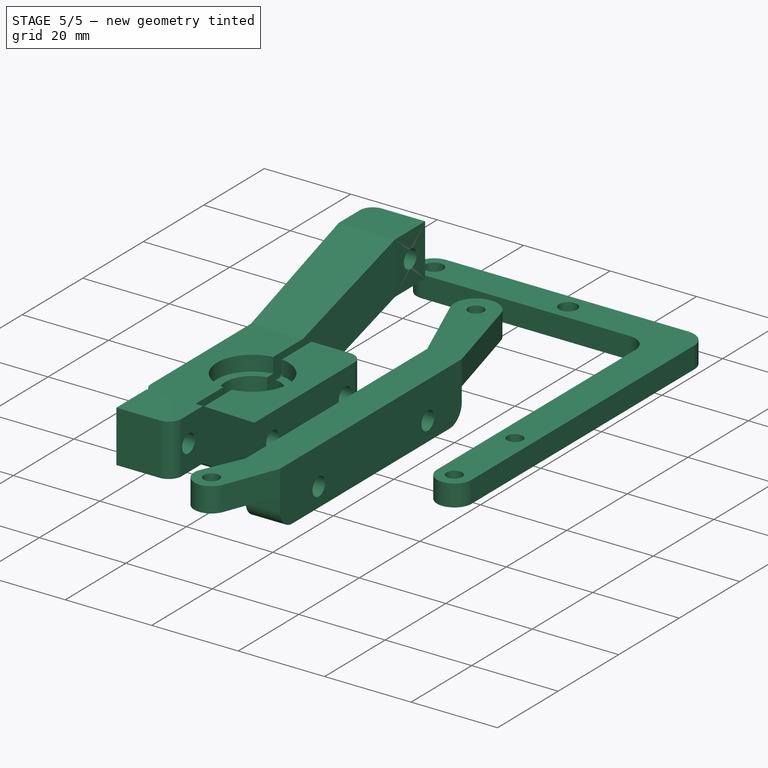
[diagram: stage 5 of 5 — iso view after this stage's code; geometry added in this stage tinted green]
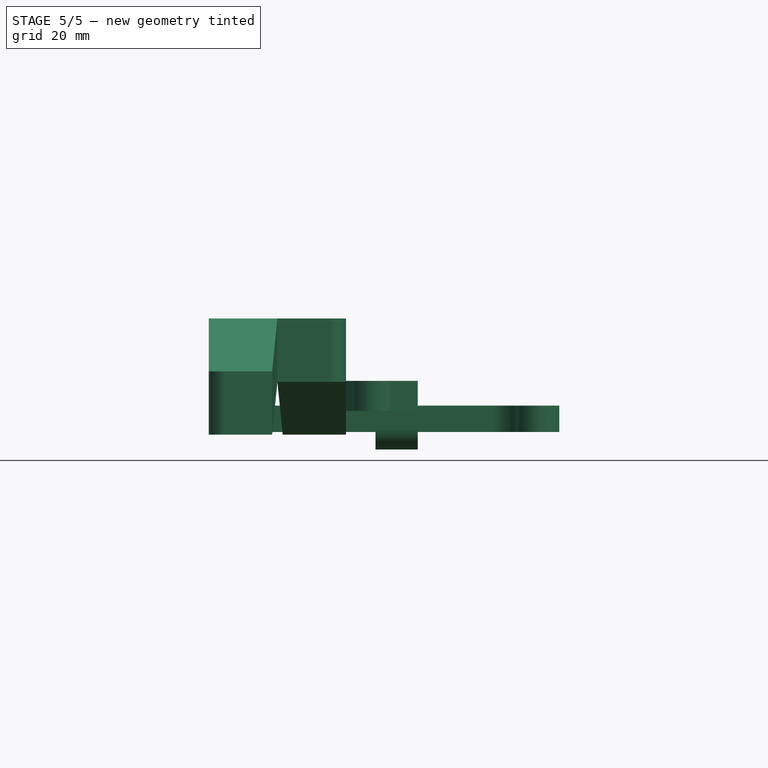
[diagram: stage 5 of 5 — front view after this stage's code; geometry added in this stage tinted green]
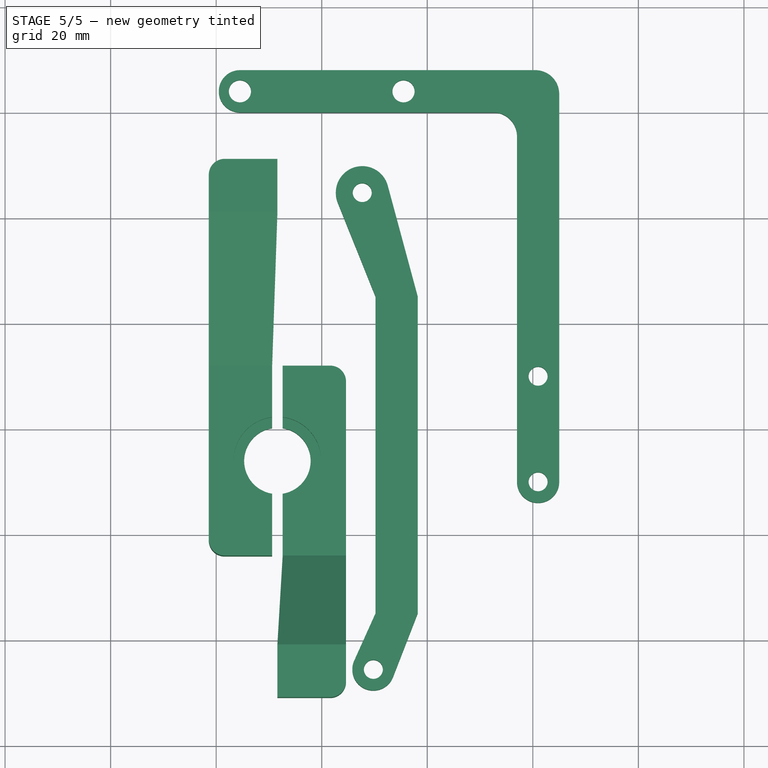
[diagram: stage 5 of 5 — top view after this stage's code; geometry added in this stage tinted green]
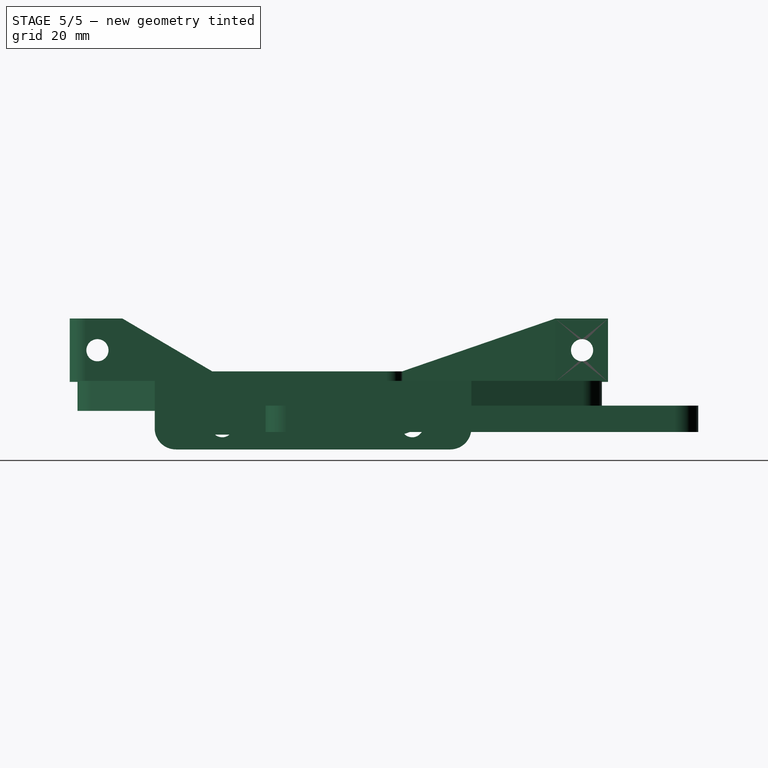
[diagram: stage 5 of 5 — right view after this stage's code; geometry added in this stage tinted green]
FEATURE [Part::Compound] Compound001  label="big thing compound"
  Links = -> [Cut002]
  Placement = pos=(-40,-87.7,3) rot=(0,0,1;0rad)
FEATURE [Part::MultiFuse] Fusion006  label="bearing connector compound fusion"
  Shapes = -> [Compound005,Part__Mirroring004]
FEATURE [Part::Mirroring] Part__Mirroring003  label="Other side slice (Mirror #2)"
  Base = (0,0,0)
  Normal = (0,1,0)
  Source = -> Slice_child0
FEATURE [Part::Compound] Compound002  label="other side compound"
  Links = -> [Part__Mirroring003]
  Placement = pos=(-40,18.3,3) rot=(0,0,1;0rad)
FEATURE [Part::Compound] Compound004  label="the pair compound"
  Links = -> [Compound002,Compound001]
  Placement = pos=(0,34.7,0) rot=(0,0,1;0rad)
FEATURE [Part::Box] Box011  label="cs cube001"
  AttacherType = Attacher::AttachEngine3D
  Height = 13
  Length = 8
  Placement = pos=(10.2,-35,-3) rot=(0,0,1;0rad)
  Width = 60
  expr: .Placement.Base.y = -Width / 2 - 5 mm
FEATURE [Sketcher::SketchObject] Sketch005  label="cs cooling schroud hole sketch"
  FullyConstrained = true
  Placement = pos=(18.2,17.6,-2.4) rot=(0.57735,-0.57735,-0.57735;2.0944rad)
  Support = -> [Box011]
  sketch-geometry (2):
    g0: Circle CenterX=3.8 CenterY=3.8 CenterZ=0 NormalX=0 NormalY=0 NormalZ=1 AngleXU=0 Radius=2.1
    g1: Circle CenterX=39.8 CenterY=3.8 CenterZ=0 NormalX=0 NormalY=0 NormalZ=1 AngleXU=0 Radius=2.1
  constraints (6):
    c: DistanceX(g0,g1) = 36
    c: DistanceY(g0,g1) = 0
    c: Radius(g0) = 2.1
    c: Equal(g0,g1)
    c: DistanceY(g-1,g0) = 3.8
    c: DistanceX(g-1,g0) = 3.8
FEATURE [Part::Extrusion] Extrude004  label="cs cooling schroud hole extrude"
  Base = -> Sketch005
  Dir = (-1,0,0)
  DirMode = 2
  FaceMakerClass = Part::FaceMakerBullseye
  LengthFwd = 10
  LengthRev = 0
  Solid = true
  Symmetric = false
FEATURE [Part::Feature] Part__Feature002  label="30mm_001"
  shape: bbox 37.84 x 37.84 x 18.96 mm, 675 faces, 0 solids (baked)
FEATURE [Part::Compound] Compound015  label="30mm_001 compound for assembly"
  Links = -> [Part__Feature002]
  Placement = pos=(53,33.5,19) rot=(0.707107,0.707107,0;3.14159rad)
FEATURE [Part::Feature] Part__Feature003  label="CoolingSchroud_3_001"
  shape: bbox 36.25 x 46.02 x 66.33 mm, 113 faces, 0 solids (baked)
FEATURE [Part::Compound] Compound013  label="CoolingSchroud_3_001 compound for assembly"
  Links = -> [Part__Feature003]
  Placement = pos=(68,48.3,-7.7) rot=(0,0,1;0rad)
FEATURE [Part::Compound] Compound024  label="cooler compound"
  Links = -> [Compound015,Compound013]
  Placement = pos=(-39.5,-52.4,20) rot=(0,0,1;0rad)
FEATURE [Sketcher::SketchObject] Sketch
  FullyConstrained = false
  sketch-geometry (10):
    g0: LineSegment StartX=10.2 StartY=25 StartZ=0 EndX=3.02881 EndY=42.8522 EndZ=0
    g1: LineSegment StartX=18.2 StartY=25 StartZ=0 EndX=12.5171 EndY=46.0277 EndZ=0
    g2: ArcOfCircle CenterX=7.67914 CenterY=44.7202 CenterZ=0 NormalX=0 NormalY=0 NormalZ=1 AngleXU=0 Radius=5.0115 StartAngle=0.263953 EndAngle=3.52356
    g3: LineSegment StartX=10.2 StartY=25 StartZ=0 EndX=18.2 EndY=25 EndZ=0
    g4: Circle CenterX=7.67914 CenterY=44.7202 CenterZ=0 NormalX=0 NormalY=0 NormalZ=1 AngleXU=0 Radius=1.8
    g5: LineSegment StartX=10.2 StartY=-35 StartZ=0 EndX=6.14682 EndY=-44.0005 EndZ=0
    g6: LineSegment StartX=18.2 StartY=-35 StartZ=0 EndX=13.5034 EndY=-47.0841 EndZ=0
    g7: LineSegment StartX=10.2 StartY=-35 StartZ=0 EndX=18.2 EndY=-35 EndZ=0
    g8: ArcOfCircle CenterX=9.78466 CenterY=-45.6387 CenterZ=0 NormalX=0 NormalY=0 NormalZ=1 AngleXU=0 Radius=3.9897 StartAngle=2.71847 EndAngle=5.91249
    g9: Circle CenterX=9.78466 CenterY=-45.6387 CenterZ=0 NormalX=0 NormalY=0 NormalZ=1 AngleXU=0 Radius=1.8
  constraints (12):
    c: Tangent(g2,g1) = -1.5708
    c: Tangent(g2,g0) = 1.5708
    c: Coincident(g3,g0)
    c: Coincident(g3,g1)
    c: Coincident(g4,g2)
    c: Radius(g4) = 1.8
    c: Coincident(g7,g5)
    c: Coincident(g7,g6)
    c: Tangent(g8,g5) = -1.5708
    c: Tangent(g8,g6) = 1.5708
    c: Coincident(g9,g8)
    c: Equal(g9,g4)
FEATURE [Part::Extrusion] Extrude006  label="cs attach pad"
  Base = -> Sketch
  Dir = (0,0,1)
  DirMode = 2
  FaceMakerClass = Part::FaceMakerBullseye
  LengthFwd = 5.7
  LengthRev = 0
  Placement = pos=(0,0,10) rot=(0,0,1;0rad)
  Reversed = true
  Solid = true
  Symmetric = false
  expr: .Placement.Base.z = <<cs cube001>>.Placement.Base.z + <<cs cube001>>.Height
FEATURE [Part::Fillet] Fillet007  label="cs cube001 fillet"
  Base = -> Box011
  Edges = 2 edges r=4: [Edge9,Edge11]
FEATURE [Part::Cut] Cut006  label="cs attachment block"
  Base = -> Fillet007
  Tool = -> Extrude004
FEATURE [Part::Compound] Compound016  label="cs attachment block compound for assembly"
  Links = -> [Cut006]
FEATURE [Part::Compound] Compound025  label="cs attachment cooler compound"
  Links = -> [Compound016,Extrude006]
  Placement = pos=(0,0,10.9) rot=(0,0,1;0rad)
FEATURE [Part::Compound] Compound007  label="assembly compound"
  Links = -> [Fusion006,Compound004,Cut007]
FEATURE [Sketcher::SketchObject] Sketch007  label="pcb holder sketch"
  FullyConstrained = true
  MapMode = 5
  Placement = pos=(0,0,11.2) rot=(0,0,1;0rad)
  Support = -> [Compound007]
  sketch-geometry (12):
    g0: LineSegment StartX=37 StartY=-10 StartZ=0 EndX=37 EndY=55.5 EndZ=0
    g1: LineSegment StartX=45 StartY=-10 StartZ=0 EndX=45 EndY=63.5 EndZ=0
    g2: LineSegment StartX=-15.5 StartY=60 StartZ=0 EndX=32.5 EndY=60 EndZ=0
    g3: Circle CenterX=-15.5 CenterY=64 CenterZ=0 NormalX=0 NormalY=0 NormalZ=1 AngleXU=0 Radius=2.1
    g4: Circle CenterX=15.5 CenterY=64 CenterZ=0 NormalX=0 NormalY=0 NormalZ=1 AngleXU=0 Radius=2.1
    g5: Circle CenterX=41 CenterY=10 CenterZ=0 NormalX=0 NormalY=0 NormalZ=1 AngleXU=0 Radius=1.8
    g6: Circle CenterX=41 CenterY=-10 CenterZ=0 NormalX=0 NormalY=0 NormalZ=1 AngleXU=0 Radius=1.8
    g7: LineSegment StartX=-15.5 StartY=68 StartZ=0 EndX=40.5 EndY=68 EndZ=0
    g8: ArcOfCircle CenterX=41 CenterY=-10 CenterZ=0 NormalX=0 NormalY=0 NormalZ=1 AngleXU=0 Radius=4 StartAngle=3.14159 EndAngle=6.28319
    g9: ArcOfCircle CenterX=-15.5 CenterY=64 CenterZ=0 NormalX=0 NormalY=0 NormalZ=1 AngleXU=0 Radius=4 StartAngle=1.5708 EndAngle=4.71239
    g10: ArcOfCircle CenterX=32.5 CenterY=55.5 CenterZ=0 NormalX=0 NormalY=0 NormalZ=1 AngleXU=0 Radius=4.5 StartAngle=0 EndAngle=1.5708
    g11: ArcOfCircle CenterX=40.5 CenterY=63.5 CenterZ=0 NormalX=0 NormalY=0 NormalZ=1 AngleXU=0 Radius=4.5 StartAngle=3e-16 EndAngle=1.5708
  constraints (28):
    c: Vertical(g0)
    c: Vertical(g1)
    c: Horizontal(g2)
    c: DistanceX(g3,g4) = 31
    c: Symmetric(g3,g4,g-2)
    c: Equal(g3,g4)
    c: Radius(g3) = 2.1
    c: Symmetric(g5,g6,g-1)
    c: Equal(g5,g6)
    c: Radius(g5) = 1.8
    c: DistanceY(g6,g5) = 20
    c: Horizontal(g7)
    c: DistanceX(g0,g6) = 4
    c: Tangent(g8,g0) = 1.5708
    c: Tangent(g8,g1) = -1.5708
    c: DistanceX(g-1,g5) = 41
    c: Coincident(g8,g6)
    c: DistanceY(g2,g4) = 4
    c: Tangent(g9,g7) = 1.5708
    c: Tangent(g9,g2) = -1.5708
    c: Coincident(g9,g3)
    c: DistanceY(g-1,g3) = 64
    c: Tangent(g11,g1) = -1.5708
    c: Tangent(g11,g7) = 1.5708
    c: Tangent(g10,g0) = -1.5708
    c: Tangent(g10,g2) = 1.5708
    c: Equal(g10,g11)
    c: Radius(g11) = 4.5
FEATURE [Part::Extrusion] Extrude007  label="pcb holder extrude"
  Base = -> Sketch007
  Dir = (0,0,1)
  DirMode = 2
  FaceMakerClass = Part::FaceMakerBullseye
  LengthFwd = 5
  LengthRev = 0
  Solid = true
  Symmetric = false
FEATURE [Part::Compound] Compound018  label="heatsink holder compound"
  Links = -> [Cut009]
  Placement = pos=(-8.4,-6.1,26.7) rot=(0,0,1;0rad)
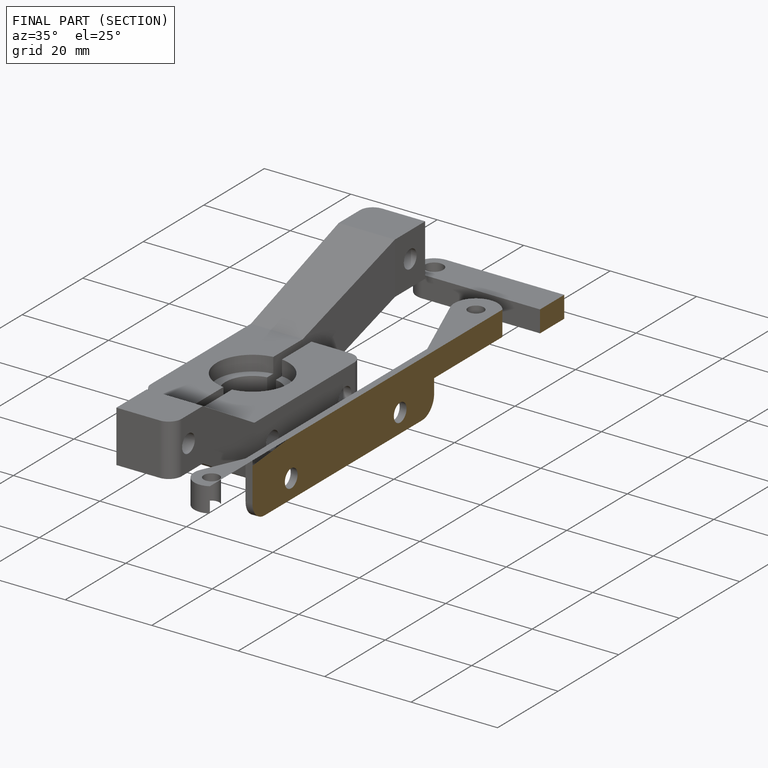
[diagram: finished part — half-section view (interior)]
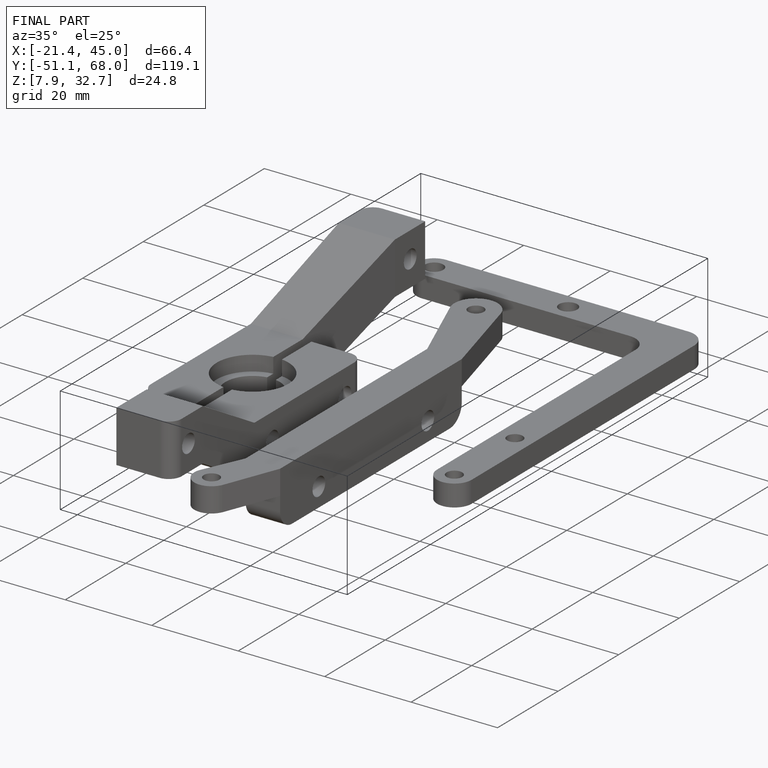
[diagram: finished part — iso view with bounding-box wireframe]
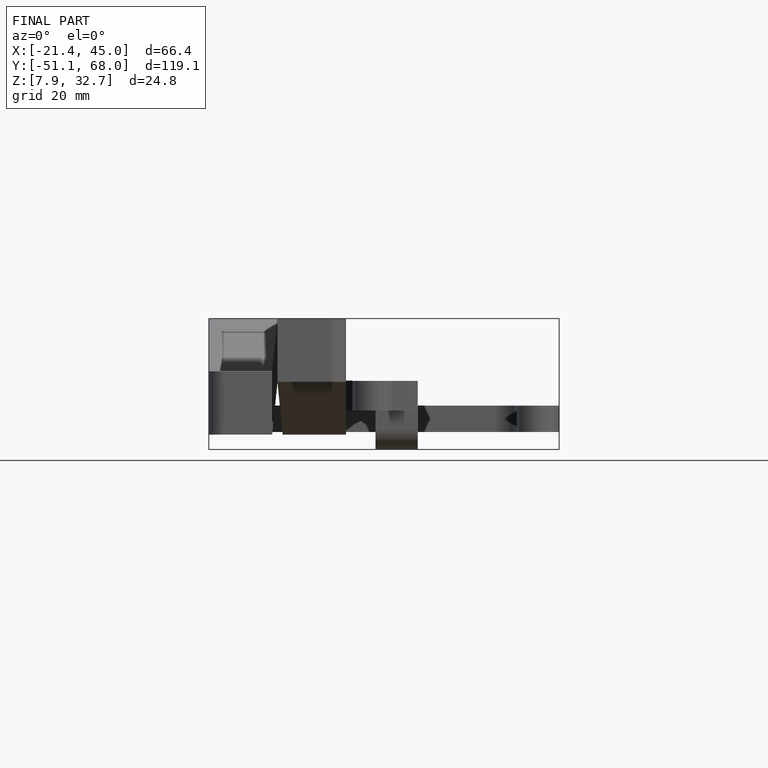
[diagram: finished part — front view with bounding-box wireframe]
